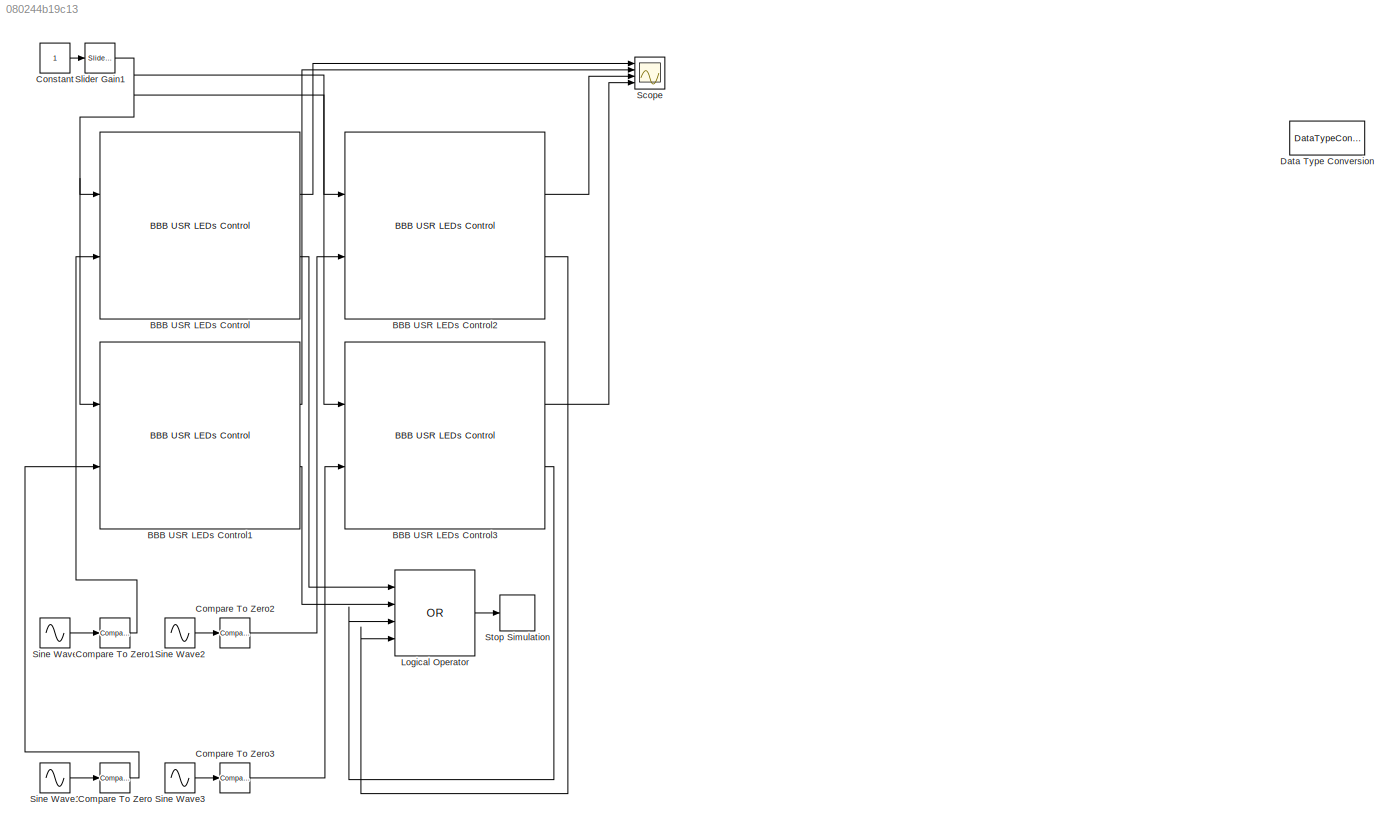
MODEL slx_080244b19c13
KIND model
BLOCK [Reference] BBB USR LEDs Control  REF=BLACKlink/BBB USR LEDs Control
  BBB_DebugInfo = Debug Level 2 - Include Diagnostics Info
  BBB_USRLED_No = USR0 LED
  Ports = [2, 2]
  SourceBlock = BLACKlink/BBB USR LEDs Control
  SourceType = BLACKlink Album - BBB_Driver_USRLED
BLOCK [Reference] BBB USR LEDs Control1  REF=BLACKlink/BBB USR LEDs Control
  BBB_DebugInfo = Debug Level 2 - Include Diagnostics Info
  BBB_USRLED_No = USR1 LED
  Ports = [2, 2]
  SourceBlock = BLACKlink/BBB USR LEDs Control
  SourceType = BLACKlink Album - BBB_Driver_USRLED
BLOCK [Reference] BBB USR LEDs Control2  REF=BLACKlink/BBB USR LEDs Control
  BBB_DebugInfo = Debug Level 2 - Include Diagnostics Info
  BBB_USRLED_No = USR2 LED
  Ports = [2, 2]
  SourceBlock = BLACKlink/BBB USR LEDs Control
  SourceType = BLACKlink Album - BBB_Driver_USRLED
BLOCK [Reference] BBB USR LEDs Control3  REF=BLACKlink/BBB USR LEDs Control
  BBB_DebugInfo = Debug Level 2 - Include Diagnostics Info
  BBB_USRLED_No = USR3 LED
  Ports = [2, 2]
  SourceBlock = BLACKlink/BBB USR LEDs Control
  SourceType = BLACKlink Album - BBB_Driver_USRLED
BLOCK [Reference] Compare To Zero  REF=simulink/Logic and Bit
Operations/Compare
To Zero
  OutDataTypeStr = boolean
  Ports = [1, 1]
  SourceBlock = simulink/Logic and Bit\nOperations/Compare\nTo Zero
  SourceType = Compare To Zero
  ZeroCross = on
  relop = >
BLOCK [Reference] Compare To Zero1  REF=simulink/Logic and Bit
Operations/Compare
To Zero
  OutDataTypeStr = boolean
  Ports = [1, 1]
  SourceBlock = simulink/Logic and Bit\nOperations/Compare\nTo Zero
  SourceType = Compare To Zero
  ZeroCross = on
  relop = >
BLOCK [Reference] Compare To Zero2  REF=simulink/Logic and Bit
Operations/Compare
To Zero
  OutDataTypeStr = boolean
  Ports = [1, 1]
  SourceBlock = simulink/Logic and Bit\nOperations/Compare\nTo Zero
  SourceType = Compare To Zero
  ZeroCross = on
  relop = >
BLOCK [Reference] Compare To Zero3  REF=simulink/Logic and Bit
Operations/Compare
To Zero
  OutDataTypeStr = boolean
  Ports = [1, 1]
  SourceBlock = simulink/Logic and Bit\nOperations/Compare\nTo Zero
  SourceType = Compare To Zero
  ZeroCross = on
  relop = >
BLOCK [Constant] Constant
BLOCK [DataTypeConversion] Data Type Conversion
  OutDataTypeStr = boolean
  RndMeth = Floor
  SaturateOnIntegerOverflow = off
BLOCK [Logic] Logical Operator
  AllPortsSameDT = off
  Inputs = 4
  Operator = OR
  OutDataTypeStr = boolean
  Ports = [4, 1]
BLOCK [Scope] Scope
  DataFormat = StructureWithTime
  Floating = off
  NumInputPorts = 4
  Ports = [4]
  SampleTime = 0
  ShowLegends = off
  YMax = 5~5~5~5
  YMin = -5~-5~-5~-5
BLOCK [Sin] Sine Wave
  Frequency = 5
  Ports = [0, 1]
BLOCK [Sin] Sine Wave1
  Frequency = 10
  Ports = [0, 1]
BLOCK [Sin] Sine Wave2
  Frequency = 15
  Ports = [0, 1]
BLOCK [Sin] Sine Wave3
  Frequency = 20
  Ports = [0, 1]
BLOCK [Reference] Slider Gain1  REF=simulink/Math
Operations/Slider
Gain
  Ports = [1, 1]
  SourceBlock = simulink/Math\nOperations/Slider\nGain
  SourceType = Slider Gain
  gain = 0
  high = 1
  low = 0
BLOCK [Stop] Stop Simulation
LINE BBB USR LEDs Control1:1 -> Scope:2
LINE BBB USR LEDs Control1:2 -> Logical Operator:2
LINE BBB USR LEDs Control2:1 -> Scope:3
LINE BBB USR LEDs Control2:2 -> Logical Operator:4
LINE BBB USR LEDs Control3:1 -> Scope:4
LINE BBB USR LEDs Control3:2 -> Logical Operator:3
LINE BBB USR LEDs Control:1 -> Scope:1
LINE BBB USR LEDs Control:2 -> Logical Operator:1
LINE Compare To Zero1:1 -> BBB USR LEDs Control:2
LINE Compare To Zero2:1 -> BBB USR LEDs Control2:2
LINE Compare To Zero3:1 -> BBB USR LEDs Control3:2
LINE Compare To Zero:1 -> BBB USR LEDs Control1:2
LINE Constant:1 -> Slider Gain1:1
LINE Logical Operator:1 -> Stop Simulation:1
LINE Sine Wave1:1 -> Compare To Zero:1
LINE Sine Wave2:1 -> Compare To Zero2:1
LINE Sine Wave3:1 -> Compare To Zero3:1
LINE Sine Wave:1 -> Compare To Zero1:1
NET Slider Gain1:1 -> BBB USR LEDs Control1:1, BBB USR LEDs Control2:1, BBB USR LEDs Control3:1, BBB USR LEDs Control:1
note: NET lines group one-source signal fan-out (src -> all destinations, sorted); 1:1 wires keep LINE
